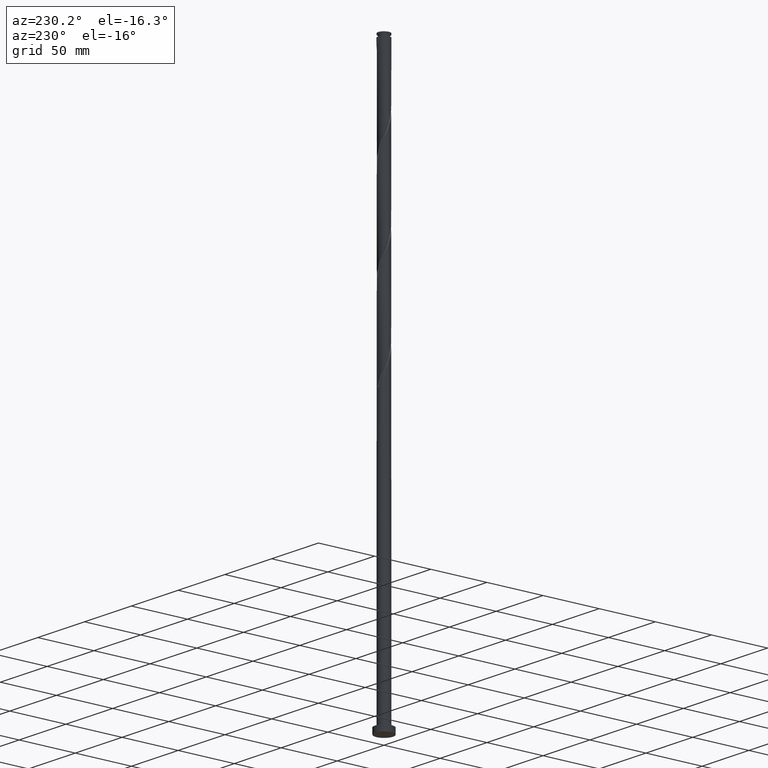
[diagram: clean part render]
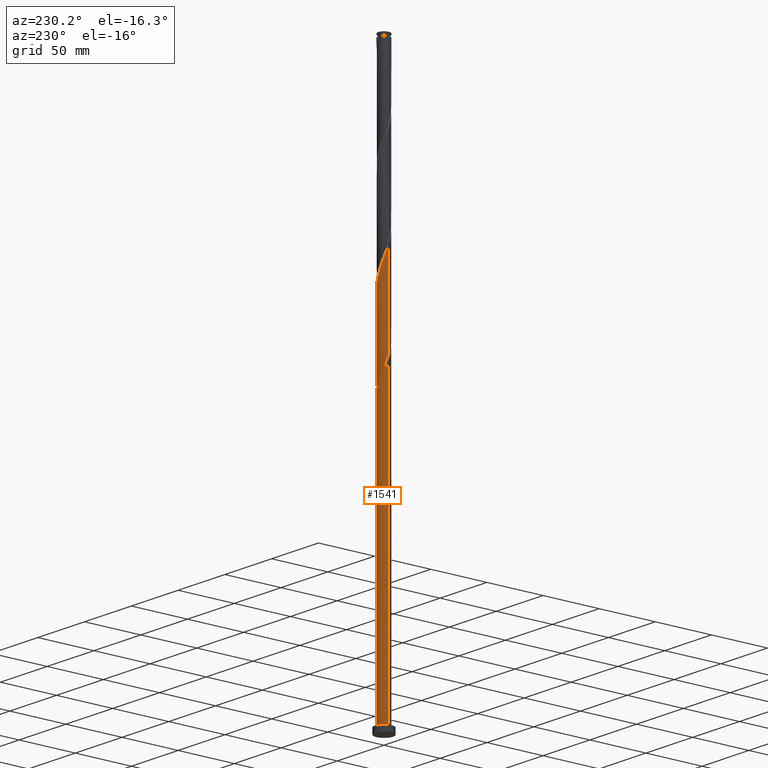
[diagram: same view with one face highlighted and labeled with its STEP entity id]
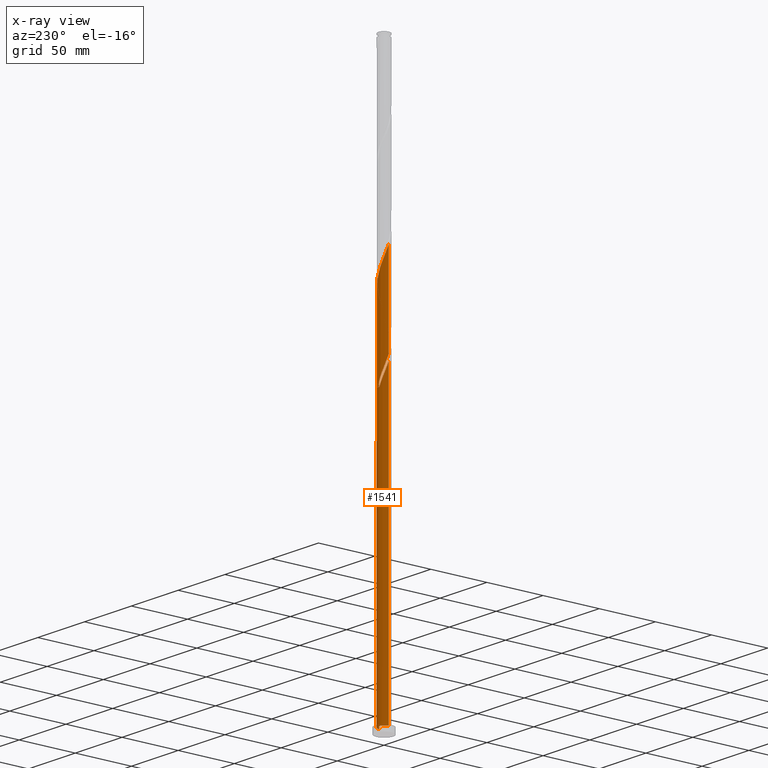
[diagram: x-ray of the same camera — body ghosted, the highlighted face saturated]
A machine part, auxiliary view. The second image highlights one B-rep face of the part: STEP entity #1541.
The next image is the same camera in x-ray: the body ghosted, the highlighted face saturated — about 0% of this face is hidden behind the body in this view.
In plain terms, the highlighted cylindrical surface (edge-blend (fillet) strip) has radius 5.1 mm, axis along (-0, -0, -1).
Its self-contained STEP definition (entity closure, byte-faithful):
#3 = CARTESIAN_POINT ( 'NONE',  ( -3.620587879580464019, 3.591844011957525229, 254.7171342820044799 ) ) ;
#12 = LINE ( 'NONE', #1936, #1564 ) ;
#23 = CARTESIAN_POINT ( 'NONE',  ( 3.235247230719704437, 3.974353636958188218, 318.5192176153378796 ) ) ;
#104 = CARTESIAN_POINT ( 'NONE',  ( 5.100000000000010303, -6.620323954633833192E-15, 306.7477706373410342 ) ) ;
#113 = CARTESIAN_POINT ( 'NONE',  ( -5.100000000000002309, -3.287796018010745455E-15, 270.3948312600012969 ) ) ;
#128 = EDGE_LOOP ( 'NONE', ( #795, #1238, #425, #1878, #1727, #244, #486, #2007 ) ) ;
#132 = CARTESIAN_POINT ( 'NONE',  ( -5.100000000000001421, 0.000000000000000000, 500.0000000000000000 ) ) ;
#147 = CARTESIAN_POINT ( 'NONE',  ( 0.000000000000000000, 0.000000000000000000, 246.9046342820044799 ) ) ;
#149 = CARTESIAN_POINT ( 'NONE',  ( -5.097957663183446897, 0.5226271518696499196, 269.0400509486711940 ) ) ;
#159 = CARTESIAN_POINT ( 'NONE',  ( 0.4819771844422329754, 5.101961335521803420, 326.3317176153378227 ) ) ;
#169 = CARTESIAN_POINT ( 'NONE',  ( -2.850285293774367457, 4.229169391747469753, 252.1129676153378512 ) ) ;
#201 = CARTESIAN_POINT ( 'NONE',  ( 4.898042336816559761, 1.507147219827863038, 310.7067176153378796 ) ) ;
#244 = ORIENTED_EDGE ( 'NONE', *, *, #1343, .T. ) ;
#252 = VERTEX_POINT ( 'NONE', #1835 ) ;
#265 = EDGE_CURVE ( 'NONE', #384, #1430, #1978, .T. ) ;
#277 = CARTESIAN_POINT ( 'NONE',  ( 0.000000000000000000, 0.000000000000000000, 5.000000000000000000 ) ) ;
#284 = CARTESIAN_POINT ( 'NONE',  ( -2.816486081117375750, 4.251753303623353020, 257.3213009486711371 ) ) ;
#298 = CARTESIAN_POINT ( 'NONE',  ( -1.468059407851916243, 4.909899494948922971, 253.4150509486711655 ) ) ;
#317 = CARTESIAN_POINT ( 'NONE',  ( -3.974353636958188218, 3.235247230719705769, 256.0192176153378796 ) ) ;
#318 = CARTESIAN_POINT ( 'NONE',  ( -1.932892169683484429, 4.719526232618722617, 254.7171342820044799 ) ) ;
#340 = CARTESIAN_POINT ( 'NONE',  ( -4.251753303623358349, 2.816486081117381524, 257.3213009486711940 ) ) ;
#360 = CARTESIAN_POINT ( 'NONE',  ( 2.397724931515060387, 4.529152970288527591, 321.1233842820044515 ) ) ;
#366 = EDGE_CURVE ( 'NONE', #651, #1852, #906, .T. ) ;
#384 = VERTEX_POINT ( 'NONE', #104 ) ;
#396 = EDGE_CURVE ( 'NONE', #1430, #1852, #2084, .T. ) ;
#425 = ORIENTED_EDGE ( 'NONE', *, *, #396, .T. ) ;
#447 = CARTESIAN_POINT ( 'NONE',  ( -2.850285293774367457, 4.229169391747469753, 335.4463009486712508 ) ) ;
#459 = CARTESIAN_POINT ( 'NONE',  ( -4.229169391747461759, 2.850285293774363016, 262.5296342820045083 ) ) ;
#483 = DIRECTION ( 'NONE',  ( -1.000000000000000000, 0.000000000000000000, 0.000000000000000000 ) ) ;
#485 = CARTESIAN_POINT ( 'NONE',  ( -2.433748465345994205, 4.509897990299593040, 334.1442176153379364 ) ) ;
#486 = ORIENTED_EDGE ( 'NONE', *, *, #922, .F. ) ;
#504 = CARTESIAN_POINT ( 'NONE',  ( -5.100000000000008527, 4.749038692682152907E-15, 265.0811039706742918 ) ) ;
#517 =( BOUNDED_CURVE ( )  B_SPLINE_CURVE ( 2, ( #625, #1274, #1285, #1762, #519, #201, #1000, #1327, #1161, #843, #1640, #23, #1804, #360, #1963, #678, #1074, #159, #1741, #1264, #637, #949, #2048, #485, #447, #1582, #794, #2085, #1121, #1763, #806, #914, #2073, #1551, #1440 ),
 .UNSPECIFIED., .F., .T. ) 
 B_SPLINE_CURVE_WITH_KNOTS ( ( 3, 2, 2, 2, 2, 2, 2, 2, 2, 2, 2, 2, 2, 2, 2, 2, 2, 3 ),
 ( 0.1795286902180871780, 0.1796875000000000000, 0.1875000000000000000, 0.1953125000000000000, 0.2031250000000000000, 0.2109375000000000000, 0.2187500000000000000, 0.2265625000000000000, 0.2343750000000000000, 0.2421875000000000000, 0.2500000000000000000, 0.2578125000000000000, 0.2656250000000000000, 0.2734375000000000000, 0.2812500000000000000, 0.2890625000000000000, 0.2968750000000000000, 0.3045286902180872612 ),
 .UNSPECIFIED. ) 
 CURVE ( )  GEOMETRIC_REPRESENTATION_ITEM ( )  RATIONAL_B_SPLINE_CURVE ( ( 0.9089165573359565542, 0.9090019243628614243, 0.9090909090909532475, 0.9047133878838593546, 0.9090909090909532475, 0.9047133878838593546, 0.9090909090909532475, 0.9047133878838593546, 0.9090909090909532475, 0.9047133878838593546, 0.9090909090909532475, 0.9047133878838593546, 0.9090909090909532475, 0.9047133878838593546, 0.9090909090909532475, 0.9047133878838593546, 0.9090909090909532475, 0.9047133878838593546, 0.9090909090909532475, 0.9047133878838593546, 0.9090909090909532475, 0.9047133878838593546, 0.9090909090909532475, 0.9047133878838593546, 0.9090909090909532475, 0.9047133878838593546, 0.9090909090909532475, 0.9047133878838593546, 0.9090909090909532475, 0.9047133878838593546, 0.9090909090909532475, 0.9047133878838593546, 0.9090909090909532475, 0.9048023726119510668, 0.9089165573359567762 ) ) 
 REPRESENTATION_ITEM ( '' )  );
#519 = CARTESIAN_POINT ( 'NONE',  ( 4.998000000000005549, 1.014887185848757145, 309.4046342820045083 ) ) ;
#533 = CARTESIAN_POINT ( 'NONE',  ( 5.100000000000001421, 6.245698675651502811E-16, 500.0000000000000000 ) ) ;
#555 = EDGE_CURVE ( 'NONE', #619, #1419, #12, .T. ) ;
#607 = VERTEX_POINT ( 'NONE', #1591 ) ;
#618 = CARTESIAN_POINT ( 'NONE',  ( -5.099959499352621606, 0.02032498371371001950, 270.3421342820044515 ) ) ;
#619 = VERTEX_POINT ( 'NONE', #1926 ) ;
#625 = CARTESIAN_POINT ( 'NONE',  ( 5.100000000000010303, -6.620323954633833192E-15, 306.7477706373410342 ) ) ;
#626 = CARTESIAN_POINT ( 'NONE',  ( 0.02032498371370980092, 5.099959499352621606, 249.5088009486711655 ) ) ;
#634 = VECTOR ( 'NONE', #1820, 1000.000000000000000 ) ;
#637 = CARTESIAN_POINT ( 'NONE',  ( -1.014887185848756701, 4.998000000000005549, 330.2379676153378796 ) ) ;
#651 = VERTEX_POINT ( 'NONE', #1297 ) ;
#658 = FACE_OUTER_BOUND ( 'NONE', #128, .T. ) ;
#659 = CARTESIAN_POINT ( 'NONE',  ( -5.005930415235366304, 0.9750182961470761356, 262.5296342820045083 ) ) ;
#678 = CARTESIAN_POINT ( 'NONE',  ( 1.468059407851920684, 4.909899494948929188, 323.7275509486711940 ) ) ;
#686 = DIRECTION ( 'NONE',  ( -0.000000000000000000, -0.000000000000000000, -1.000000000000000000 ) ) ;
#702 = AXIS2_PLACEMENT_3D ( 'NONE', #1945, #686, #1935 ) ;
#770 = CARTESIAN_POINT ( 'NONE',  ( 1.014887185848758477, 4.998000000000001108, 246.9046342820045083 ) ) ;
#794 = CARTESIAN_POINT ( 'NONE',  ( -3.620587879580464019, 3.591844011957525229, 338.0504676153378796 ) ) ;
#795 = ORIENTED_EDGE ( 'NONE', *, *, #891, .F. ) ;
#806 = CARTESIAN_POINT ( 'NONE',  ( -4.719526232618731498, 1.932892169683488426, 343.2588009486711940 ) ) ;
#816 = CARTESIAN_POINT ( 'NONE',  ( -4.909899494948929188, 1.468059407851920239, 261.2275509486711371 ) ) ;
#823 = DIRECTION ( 'NONE',  ( -0.000000000000000000, -0.000000000000000000, -1.000000000000000000 ) ) ;
#834 = EDGE_CURVE ( 'NONE', #607, #651, #1151, .T. ) ;
#843 = CARTESIAN_POINT ( 'NONE',  ( 3.948440793195344689, 3.266822122202739820, 315.9150509486711371 ) ) ;
#863 = CIRCLE ( 'NONE', #935, 5.100000000000001421 ) ;
#891 = EDGE_CURVE ( 'NONE', #384, #619, #517, .T. ) ;
#906 = LINE ( 'NONE', #132, #1444 ) ;
#914 = CARTESIAN_POINT ( 'NONE',  ( -4.909899494948929188, 1.468059407851920239, 344.5608842820045083 ) ) ;
#922 = EDGE_CURVE ( 'NONE', #1419, #252, #1811, .T. ) ;
#927 = CARTESIAN_POINT ( 'NONE',  ( -4.998000000000001108, 1.014887185848757145, 267.7379676153378796 ) ) ;
#935 = AXIS2_PLACEMENT_3D ( 'NONE', #147, #1394, #483 ) ;
#940 = CARTESIAN_POINT ( 'NONE',  ( -0.4819771844422305884, 5.101961335521795426, 250.8108842820044799 ) ) ;
#949 = CARTESIAN_POINT ( 'NONE',  ( -1.507147219827865703, 4.898042336816559761, 331.5400509486711940 ) ) ;
#956 = CARTESIAN_POINT ( 'NONE',  ( -2.433748465345994205, 4.509897990299593040, 250.8108842820044799 ) ) ;
#957 = CARTESIAN_POINT ( 'NONE',  ( -4.703970163558070183, 1.970447842586927845, 265.1338009486711371 ) ) ;
#970 = CARTESIAN_POINT ( 'NONE',  ( -1.014887185848756479, 4.998000000000005549, 246.9046342820044799 ) ) ;
#989 = CARTESIAN_POINT ( 'NONE',  ( -4.719526232618731498, 1.932892169683488426, 259.9254676153378796 ) ) ;
#1000 = CARTESIAN_POINT ( 'NONE',  ( 4.703970163558077289, 1.970447842586929843, 312.0088009486711940 ) ) ;
#1033 = AXIS2_PLACEMENT_3D ( 'NONE', #277, #1718, #1410 ) ;
#1074 = CARTESIAN_POINT ( 'NONE',  ( 0.9750182961470791332, 5.005930415235366304, 325.0296342820045083 ) ) ;
#1097 = CARTESIAN_POINT ( 'NONE',  ( -2.397724931515051505, 4.529152970288524038, 256.0192176153378227 ) ) ;
#1107 = CARTESIAN_POINT ( 'NONE',  ( -5.100000000000002309, -3.287796018010745455E-15, 270.3948312600012969 ) ) ;
#1120 = CARTESIAN_POINT ( 'NONE',  ( -4.529152970288531144, 2.397724931515057278, 258.6233842820045083 ) ) ;
#1121 = CARTESIAN_POINT ( 'NONE',  ( -4.251753303623358349, 2.816486081117381524, 340.6546342820045083 ) ) ;
#1151 =( BOUNDED_CURVE ( )  B_SPLINE_CURVE ( 2, ( #970, #1946, #1153, #956, #169, #2083, #3, #317, #340, #1120, #989, #816, #659, #1629, #504 ),
 .UNSPECIFIED., .F., .T. ) 
 B_SPLINE_CURVE_WITH_KNOTS ( ( 3, 2, 2, 2, 2, 2, 2, 3 ),
 ( 0.000000000000000000, 0.007812500000000000000, 0.01562500000000000000, 0.02343749999999999653, 0.03125000000000000000, 0.03906250000000000000, 0.04687499999999999306, 0.05452869021808719185 ),
 .UNSPECIFIED. ) 
 CURVE ( )  GEOMETRIC_REPRESENTATION_ITEM ( )  RATIONAL_B_SPLINE_CURVE ( ( 0.9090909090909532475, 0.9047133878838593546, 0.9090909090909532475, 0.9047133878838593546, 0.9090909090909532475, 0.9047133878838593546, 0.9090909090909532475, 0.9047133878838593546, 0.9090909090909532475, 0.9047133878838593546, 0.9090909090909532475, 0.9047133878838593546, 0.9090909090909532475, 0.9048023726119511778, 0.9089165573359566652 ) ) 
 REPRESENTATION_ITEM ( '' )  );
#1153 = CARTESIAN_POINT ( 'NONE',  ( -1.970447842586929621, 4.703970163558077289, 249.5088009486711371 ) ) ;
#1161 = CARTESIAN_POINT ( 'NONE',  ( 4.229169391747468865, 2.850285293774368345, 314.6129676153378796 ) ) ;
#1237 = CARTESIAN_POINT ( 'NONE',  ( -4.509897990299586823, 2.433748465345991541, 263.8317176153378227 ) ) ;
#1238 = ORIENTED_EDGE ( 'NONE', *, *, #265, .T. ) ;
#1264 = CARTESIAN_POINT ( 'NONE',  ( -0.5226271518696506968, 5.097957663183454891, 328.9358842820044515 ) ) ;
#1274 = CARTESIAN_POINT ( 'NONE',  ( 5.100000000000009415, 0.01016253220872763777, 306.7741241918582773 ) ) ;
#1285 = CARTESIAN_POINT ( 'NONE',  ( 5.099959499352630488, 0.02032498371370667495, 306.8004676153379364 ) ) ;
#1287 = CARTESIAN_POINT ( 'NONE',  ( -5.100000000000000533, 0.01016253220872208839, 270.3684777054839969 ) ) ;
#1297 = CARTESIAN_POINT ( 'NONE',  ( -5.100000000000009415, 4.749038692682152907E-15, 265.0811039706742918 ) ) ;
#1327 = CARTESIAN_POINT ( 'NONE',  ( 4.509897990299594817, 2.433748465345992873, 313.3108842820044515 ) ) ;
#1343 = EDGE_CURVE ( 'NONE', #607, #252, #863, .T. ) ;
#1394 = DIRECTION ( 'NONE',  ( 0.000000000000000000, -0.000000000000000000, -1.000000000000000000 ) ) ;
#1398 = DIRECTION ( 'NONE',  ( -0.000000000000000000, -0.000000000000000000, -1.000000000000000000 ) ) ;
#1410 = DIRECTION ( 'NONE',  ( 1.000000000000000000, 0.000000000000000000, 0.000000000000000000 ) ) ;
#1419 = VERTEX_POINT ( 'NONE', #1107 ) ;
#1430 = VERTEX_POINT ( 'NONE', #1874 ) ;
#1440 = CARTESIAN_POINT ( 'NONE',  ( -5.100000000000009415, 4.749038692682152907E-15, 348.4144373040076630 ) ) ;
#1444 = VECTOR ( 'NONE', #1398, 1000.000000000000000 ) ;
#1479 = CARTESIAN_POINT ( 'NONE',  ( -5.100000000000001421, 0.000000000000000000, 5.000000000000000000 ) ) ;
#1541 = ADVANCED_FACE ( 'NONE', ( #658 ), #1962, .T. ) ;
#1551 = CARTESIAN_POINT ( 'NONE',  ( -5.100000000000010303, 0.4920470561378020857, 347.1384571985917660 ) ) ;
#1564 = VECTOR ( 'NONE', #823, 1000.000000000000000 ) ;
#1573 = CARTESIAN_POINT ( 'NONE',  ( -3.591844011957518124, 3.620587879580459134, 259.9254676153378796 ) ) ;
#1582 = CARTESIAN_POINT ( 'NONE',  ( -3.266822122202741152, 3.948440793195344689, 336.7483842820045652 ) ) ;
#1591 = CARTESIAN_POINT ( 'NONE',  ( -1.014887185848756479, 4.998000000000005549, 246.9046342820044799 ) ) ;
#1592 = CARTESIAN_POINT ( 'NONE',  ( -0.9750182961470735821, 5.005930415235359199, 252.1129676153378512 ) ) ;
#1629 = CARTESIAN_POINT ( 'NONE',  ( -5.100000000000009415, 0.4920470561378065266, 263.8051238652582242 ) ) ;
#1640 = CARTESIAN_POINT ( 'NONE',  ( 3.591844011957526117, 3.620587879580462687, 317.2171342820045652 ) ) ;
#1718 = DIRECTION ( 'NONE',  ( 0.000000000000000000, 0.000000000000000000, 1.000000000000000000 ) ) ;
#1727 = ORIENTED_EDGE ( 'NONE', *, *, #834, .F. ) ;
#1741 = CARTESIAN_POINT ( 'NONE',  ( -0.02032498371370645984, 5.099959499352630488, 327.6338009486711940 ) ) ;
#1762 = CARTESIAN_POINT ( 'NONE',  ( 5.097957663183454891, 0.5226271518696510299, 308.1025509486711371 ) ) ;
#1763 = CARTESIAN_POINT ( 'NONE',  ( -4.529152970288531144, 2.397724931515057278, 341.9567176153378796 ) ) ;
#1804 = CARTESIAN_POINT ( 'NONE',  ( 2.816486081117381968, 4.251753303623358349, 319.8213009486712508 ) ) ;
#1811 =( BOUNDED_CURVE ( )  B_SPLINE_CURVE ( 2, ( #113, #1287, #618, #149, #927, #1902, #957, #1237, #459, #1927, #1573, #1877, #284, #1097, #318, #298, #1592, #940, #626, #2062, #770 ),
 .UNSPECIFIED., .F., .T. ) 
 B_SPLINE_CURVE_WITH_KNOTS ( ( 3, 2, 2, 2, 2, 2, 2, 2, 2, 2, 3 ),
 ( 0.9295286902180870392, 0.9296875000000000000, 0.9375000000000000000, 0.9453125000000000000, 0.9531250000000000000, 0.9609375000000000000, 0.9687500000000000000, 0.9765625000000000000, 0.9843750000000000000, 0.9921875000000000000, 1.000000000000000000 ),
 .UNSPECIFIED. ) 
 CURVE ( )  GEOMETRIC_REPRESENTATION_ITEM ( )  RATIONAL_B_SPLINE_CURVE ( ( 0.9089165573359498929, 0.9090019243628547629, 0.9090909090909466972, 0.9047133878838528043, 0.9090909090909466972, 0.9047133878838528043, 0.9090909090909466972, 0.9047133878838528043, 0.9090909090909466972, 0.9047133878838528043, 0.9090909090909466972, 0.9047133878838528043, 0.9090909090909466972, 0.9047133878838528043, 0.9090909090909466972, 0.9047133878838528043, 0.9090909090909466972, 0.9047133878838528043, 0.9090909090909466972, 0.9047133878838528043, 0.9090909090909466972 ) ) 
 REPRESENTATION_ITEM ( '' )  );
#1820 = DIRECTION ( 'NONE',  ( -0.000000000000000000, -0.000000000000000000, -1.000000000000000000 ) ) ;
#1835 = CARTESIAN_POINT ( 'NONE',  ( 1.014887185848758477, 4.998000000000000220, 246.9046342820044799 ) ) ;
#1852 = VERTEX_POINT ( 'NONE', #1479 ) ;
#1874 = CARTESIAN_POINT ( 'NONE',  ( 5.100000000000001421, 6.245698675651502811E-16, 5.000000000000000000 ) ) ;
#1877 = CARTESIAN_POINT ( 'NONE',  ( -3.235247230719698219, 3.974353636958182445, 258.6233842820045083 ) ) ;
#1878 = ORIENTED_EDGE ( 'NONE', *, *, #366, .F. ) ;
#1902 = CARTESIAN_POINT ( 'NONE',  ( -4.898042336816550879, 1.507147219827864371, 266.4358842820044515 ) ) ;
#1926 = CARTESIAN_POINT ( 'NONE',  ( -5.100000000000009415, 4.749038692682152907E-15, 348.4144373040076061 ) ) ;
#1927 = CARTESIAN_POINT ( 'NONE',  ( -3.948440793195336695, 3.266822122202736267, 261.2275509486711371 ) ) ;
#1935 = DIRECTION ( 'NONE',  ( -1.000000000000000000, 0.000000000000000000, 0.000000000000000000 ) ) ;
#1936 = CARTESIAN_POINT ( 'NONE',  ( -5.100000000000001421, 0.000000000000000000, 500.0000000000000000 ) ) ;
#1945 = CARTESIAN_POINT ( 'NONE',  ( 0.000000000000000000, 0.000000000000000000, 500.0000000000000000 ) ) ;
#1946 = CARTESIAN_POINT ( 'NONE',  ( -1.507147219827865703, 4.898042336816559761, 248.2067176153378512 ) ) ;
#1962 = CYLINDRICAL_SURFACE ( 'NONE', #702, 5.100000000000001421 ) ;
#1963 = CARTESIAN_POINT ( 'NONE',  ( 1.932892169683488426, 4.719526232618731498, 322.4254676153378796 ) ) ;
#1978 = LINE ( 'NONE', #533, #634 ) ;
#2007 = ORIENTED_EDGE ( 'NONE', *, *, #555, .F. ) ;
#2048 = CARTESIAN_POINT ( 'NONE',  ( -1.970447842586929621, 4.703970163558077289, 332.8421342820045652 ) ) ;
#2062 = CARTESIAN_POINT ( 'NONE',  ( 0.5226271518696500307, 5.097957663183446897, 248.2067176153378227 ) ) ;
#2073 = CARTESIAN_POINT ( 'NONE',  ( -5.005930415235366304, 0.9750182961470761356, 345.8629676153377659 ) ) ;
#2083 = CARTESIAN_POINT ( 'NONE',  ( -3.266822122202741152, 3.948440793195344689, 253.4150509486712224 ) ) ;
#2084 = CIRCLE ( 'NONE', #1033, 5.100000000000001421 ) ;
#2085 = CARTESIAN_POINT ( 'NONE',  ( -3.974353636958188218, 3.235247230719705769, 339.3525509486711940 ) ) ;